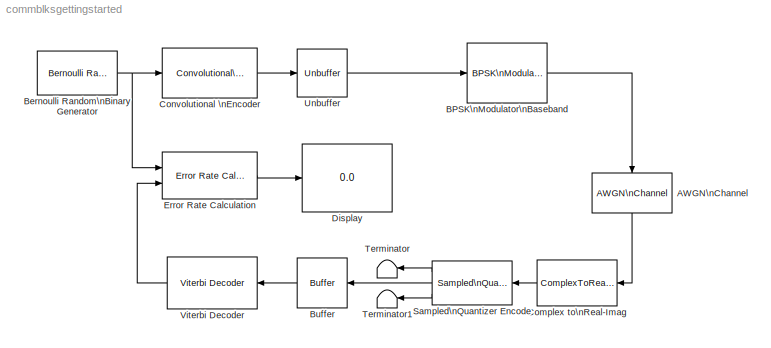
MODEL commblksgettingstarted
KIND model
CONFIG AbsTol = auto
CONFIG FixedStep = auto
CONFIG MaxStep = auto
CONFIG MinStep = auto
CONFIG RelTol = 1e-3
CONFIG Solver = ode45
CONFIG SolverMode = SingleTasking
CONFIG StartTime = 0.0
CONFIG StopTime = inf
BLOCK [Reference] AWGN\nChannel  REF=commchan2/AWGN\nChannel
  EsNodB = -1
  Ports = [1, 1]
  Ps = 1
  SNRdB = 10
  SourceBlock = commchan2/AWGN\nChannel
  SourceType = AWGN Channel
  Tsym = .5
  noiseMode = Signal to noise ratio  (Es/No)
  seed = 123456
  variance = 1
BLOCK [Reference] BPSK\nModulator\nBaseband  REF=commdigbbndpm2/BPSK\nModulator\nBaseband
  Ph = 0
  Ports = [1, 1]
  SourceBlock = commdigbbndpm2/BPSK\nModulator\nBaseband
  SourceType = BPSK Modulator Baseband
  numSamp = 1
BLOCK [Reference] Bernoulli Random\nBinary Generator  REF=commsource2/Bernoulli Random\nBinary Generator
  P = 0.5
  Ports = [0, 1]
  SourceBlock = commsource2/Bernoulli Random\nBinary Generator
  SourceType = Bernoulli Random Binary Generator
  Ts = 1
  frameBased = on
  orient = off
  sampPerFrame = 1
  seed = 12345
BLOCK [Reference] Buffer  REF=dspbuff3/Buffer
  N = 2
  Ports = [1, 1]
  SourceBlock = dspbuff3/Buffer
  SourceType = Buffer
  V = 0
  ic = 0
BLOCK [ComplexToRealImag] Complex to\nReal-Imag
  Output = Real
  Ports = [1, 1]
BLOCK [Reference] Convolutional \nEncoder  REF=commcnvcod2/Convolutional\nEncoder
  Ports = [1, 1]
  SourceBlock = commcnvcod2/Convolutional\nEncoder
  SourceType = Convolutional Encoder
  reset = None
  trellis = poly2trellis(7, [171 133])
BLOCK [Display] Display
  Decimation = 1
  Floating = off
  Format = short
  Ports = [1]
  SampleTime = -1
BLOCK [Reference] Error Rate Calculation  REF=commsink2/Error Rate Calculation
  N = 49
  PMode = Port
  Ports = [2, 1]
  RsMode2 = off
  SourceBlock = commsink2/Error Rate Calculation
  SourceType = Error Rate Calculation
  WsName = ErrorVec
  cp_mode = Entire frame
  maxBits = 1e6
  numErr = 100
  st_delay = 0
  stop = off
  subframe = []
BLOCK [Reference] Sampled\nQuantizer Encode  REF=commsrccod2/Sampled\nQuantizer Encode
  Ports = [1, 3]
  SourceBlock = commsrccod2/Sampled\nQuantizer Encode
  SourceType = Sampled Quantizer Encode
  codebook = [7 6 5 4 3 2 1 0]
  n = 1
  partition = [-.75 -.5 -.25 0 .25 .5 .75]
  sample_time = -1
BLOCK [Terminator] Terminator
BLOCK [Terminator] Terminator1
BLOCK [Reference] Unbuffer  REF=dspbuff3/Unbuffer
  Ports = [1, 1]
  SourceBlock = dspbuff3/Unbuffer
  SourceType = Unbuffer
  ic = 0
BLOCK [Reference] Viterbi Decoder  REF=commcnvcod2/Viterbi Decoder
  Ports = [1, 1]
  SourceBlock = commcnvcod2/Viterbi Decoder
  SourceType = Viterbi Decoder
  dectype = Soft Decision
  nsdecb = 3
  opmode = Continuous
  reset = off
  tbdepth = 48
  trellis = poly2trellis(7, [171 133])
LINE AWGN\nChannel:1 -> Complex to\nReal-Imag:1
LINE BPSK\nModulator\nBaseband:1 -> AWGN\nChannel:1
NET Bernoulli Random\nBinary Generator:1 -> Convolutional \nEncoder:1, Error Rate Calculation:1
LINE Buffer:1 -> Viterbi Decoder:1
LINE Complex to\nReal-Imag:1 -> Sampled\nQuantizer Encode:1
LINE Convolutional \nEncoder:1 -> Unbuffer:1
LINE Error Rate Calculation:1 -> Display:1
LINE Sampled\nQuantizer Encode:1 -> Terminator:1
LINE Sampled\nQuantizer Encode:2 -> Buffer:1
LINE Sampled\nQuantizer Encode:3 -> Terminator1:1
LINE Unbuffer:1 -> BPSK\nModulator\nBaseband:1
LINE Viterbi Decoder:1 -> Error Rate Calculation:2
note: NET lines group one-source signal fan-out (src -> all destinations, sorted); 1:1 wires keep LINE
